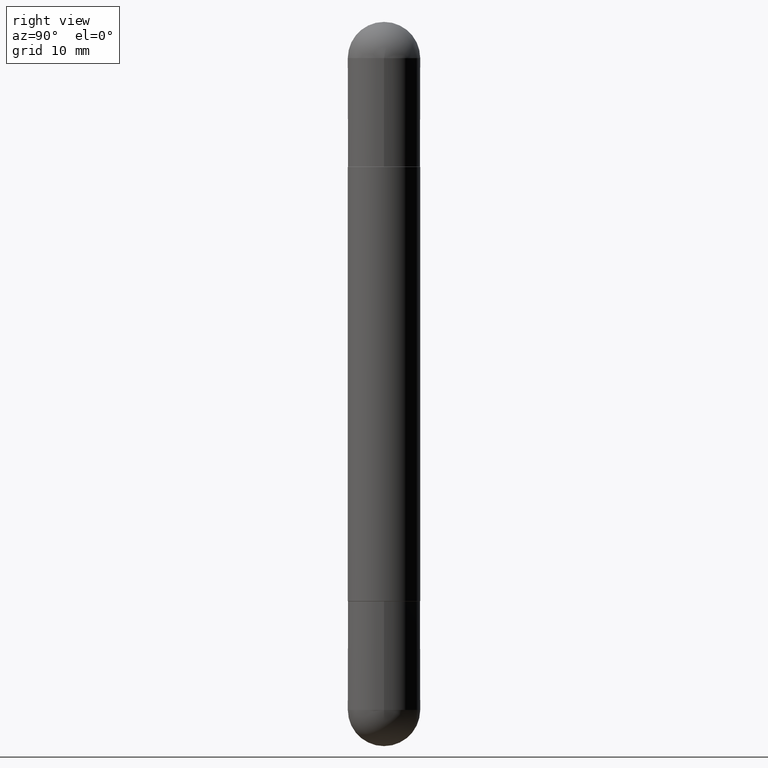
[diagram: clean part render]
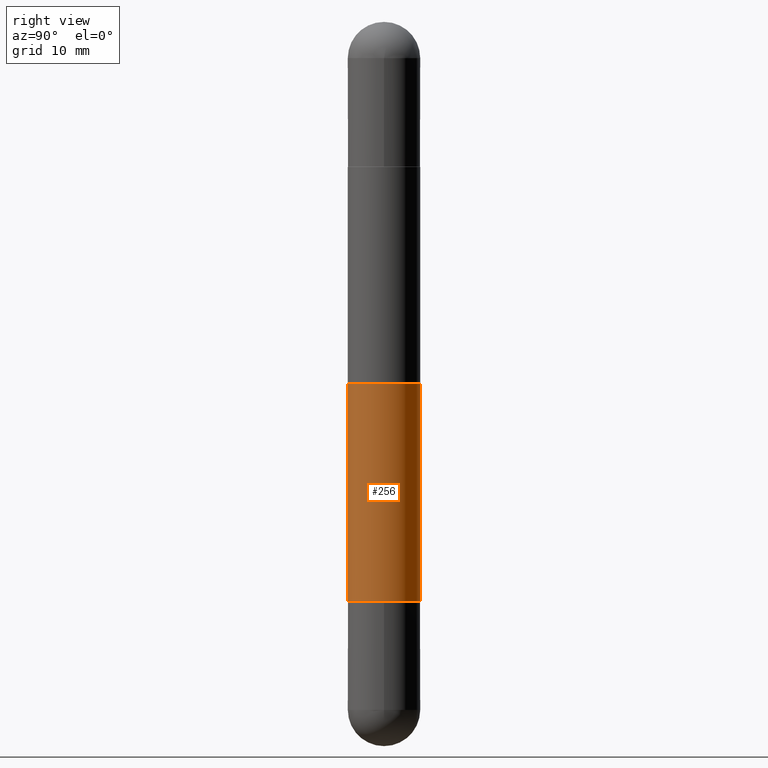
[diagram: same view with one face highlighted and labeled with its STEP entity id]
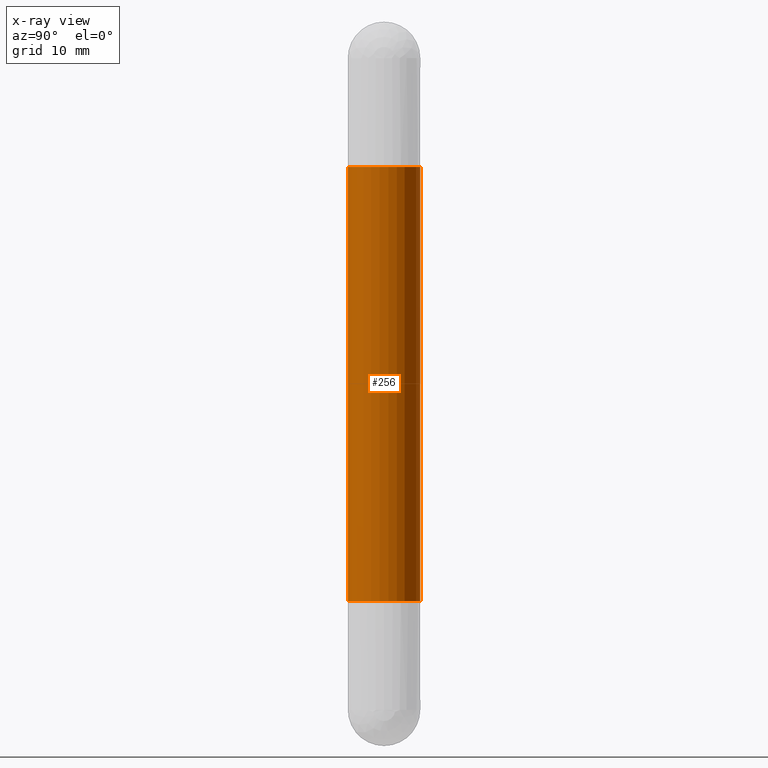
[diagram: x-ray of the same camera — body ghosted, the highlighted face saturated]
A machine part, right view. The second image highlights one B-rep face of the part: STEP entity #256.
The next image is the same camera in x-ray: the body ghosted, the highlighted face saturated — about 0% of this face is hidden behind the body in this view.
In plain terms, the highlighted cylindrical surface (edge-blend (fillet) strip) has radius 3.175 mm, axis along (-0, 0, -1).
Its self-contained STEP definition (entity closure, byte-faithful):
#4 = LINE ( 'NONE', #463, #551 ) ;
#7 = AXIS2_PLACEMENT_3D ( 'NONE', #44, #98, #654 ) ;
#44 = CARTESIAN_POINT ( 'NONE',  ( 0.000000000000000000, 0.000000000000000000, -2.500000000000000444 ) ) ;
#85 = CARTESIAN_POINT ( 'NONE',  ( 8.575622497214918338E-16, 0.1249999999999932554, -0.5010000000000006670 ) ) ;
#87 = DIRECTION ( 'NONE',  ( 2.444771269362750222E-29, -3.492480251274133284E-15, 1.000000000000000000 ) ) ;
#98 = DIRECTION ( 'NONE',  ( -2.444771269362750222E-29, 3.492480251274133284E-15, -1.000000000000000000 ) ) ;
#106 = EDGE_CURVE ( 'NONE', #741, #241, #630, .T. ) ;
#118 = LINE ( 'NONE', #374, #657 ) ;
#127 = ORIENTED_EDGE ( 'NONE', *, *, #808, .T. ) ;
#137 = ORIENTED_EDGE ( 'NONE', *, *, #106, .F. ) ;
#152 = CARTESIAN_POINT ( 'NONE',  ( 4.887097767456136437E-29, -6.981468022296989984E-15, -0.5010000000000010001 ) ) ;
#166 = EDGE_CURVE ( 'NONE', #194, #567, #739, .T. ) ;
#179 = AXIS2_PLACEMENT_3D ( 'NONE', #288, #480, #339 ) ;
#194 = VERTEX_POINT ( 'NONE', #715 ) ;
#241 = VERTEX_POINT ( 'NONE', #85 ) ;
#256 = ADVANCED_FACE ( 'NONE', ( #735 ), #416, .T. ) ;
#288 = CARTESIAN_POINT ( 'NONE',  ( 4.887097767456136437E-29, -6.981468022296989984E-15, -1.998999999999999666 ) ) ;
#322 = CARTESIAN_POINT ( 'NONE',  ( 8.575622497214732956E-16, 0.1249999999999932554, -1.999000000000000110 ) ) ;
#339 = DIRECTION ( 'NONE',  ( -6.982962677686265922E-15, -1.000000000000000000, 4.370956789862812472E-15 ) ) ;
#341 = DIRECTION ( 'NONE',  ( -6.982962677686265922E-15, -1.000000000000000000, -3.278217592397109157E-15 ) ) ;
#374 = CARTESIAN_POINT ( 'NONE',  ( 8.575622497214423328E-16, 0.1250000000000001388, -2.500000000000000000 ) ) ;
#416 = CYLINDRICAL_SURFACE ( 'NONE', #7, 0.1250000000000001388 ) ;
#463 = CARTESIAN_POINT ( 'NONE',  ( -8.728703347107842263E-16, -0.1250000000000001388, -2.500000000000001332 ) ) ;
#480 = DIRECTION ( 'NONE',  ( -2.444771269362750222E-29, 3.492480251274133284E-15, 1.000000000000000000 ) ) ;
#491 = EDGE_CURVE ( 'NONE', #241, #567, #118, .T. ) ;
#514 = DIRECTION ( 'NONE',  ( -2.444771269362750222E-29, 3.492480251274133284E-15, -1.000000000000000000 ) ) ;
#522 = CARTESIAN_POINT ( 'NONE',  ( -8.728703347107363030E-16, -0.1250000000000072442, -0.5010000000000014442 ) ) ;
#551 = VECTOR ( 'NONE', #514, 39.37007874015748143 ) ;
#567 = VERTEX_POINT ( 'NONE', #322 ) ;
#568 = AXIS2_PLACEMENT_3D ( 'NONE', #152, #87, #341 ) ;
#574 = DIRECTION ( 'NONE',  ( -2.444771269362750222E-29, 3.492480251274133284E-15, -1.000000000000000000 ) ) ;
#630 = CIRCLE ( 'NONE', #568, 0.1250000000000002498 ) ;
#654 = DIRECTION ( 'NONE',  ( -6.982962677686265922E-15, -1.000000000000000000, -4.370956789862816416E-15 ) ) ;
#657 = VECTOR ( 'NONE', #574, 39.37007874015748143 ) ;
#715 = CARTESIAN_POINT ( 'NONE',  ( -8.728703347107362044E-16, -0.1250000000000072442, -1.998999999999999000 ) ) ;
#735 = FACE_OUTER_BOUND ( 'NONE', #802, .T. ) ;
#739 = CIRCLE ( 'NONE', #179, 0.1250000000000002498 ) ;
#741 = VERTEX_POINT ( 'NONE', #522 ) ;
#774 = ORIENTED_EDGE ( 'NONE', *, *, #491, .F. ) ;
#783 = ORIENTED_EDGE ( 'NONE', *, *, #166, .T. ) ;
#802 = EDGE_LOOP ( 'NONE', ( #774, #137, #127, #783 ) ) ;
#808 = EDGE_CURVE ( 'NONE', #741, #194, #4, .T. ) ;